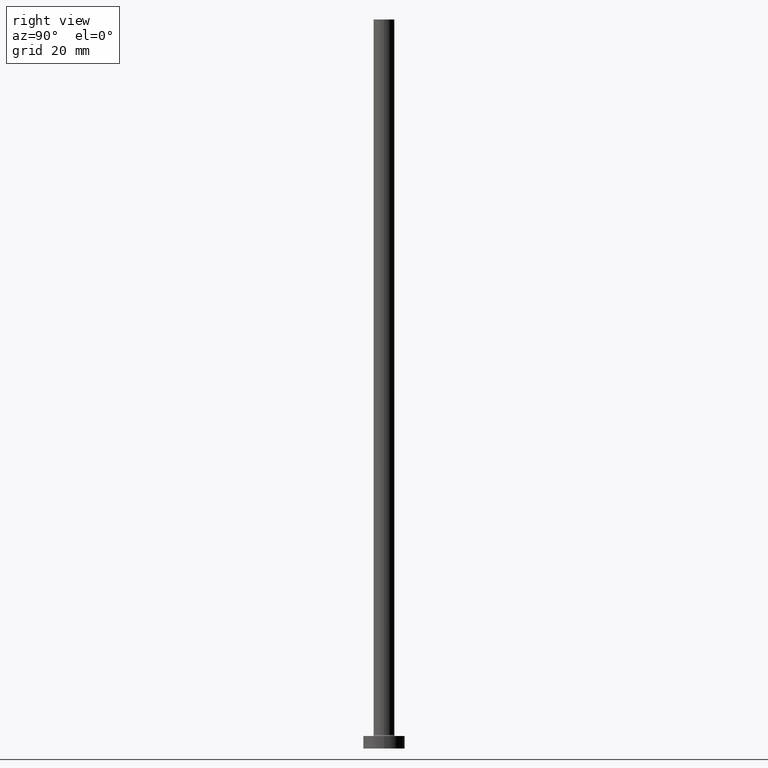
[diagram: clean part render]
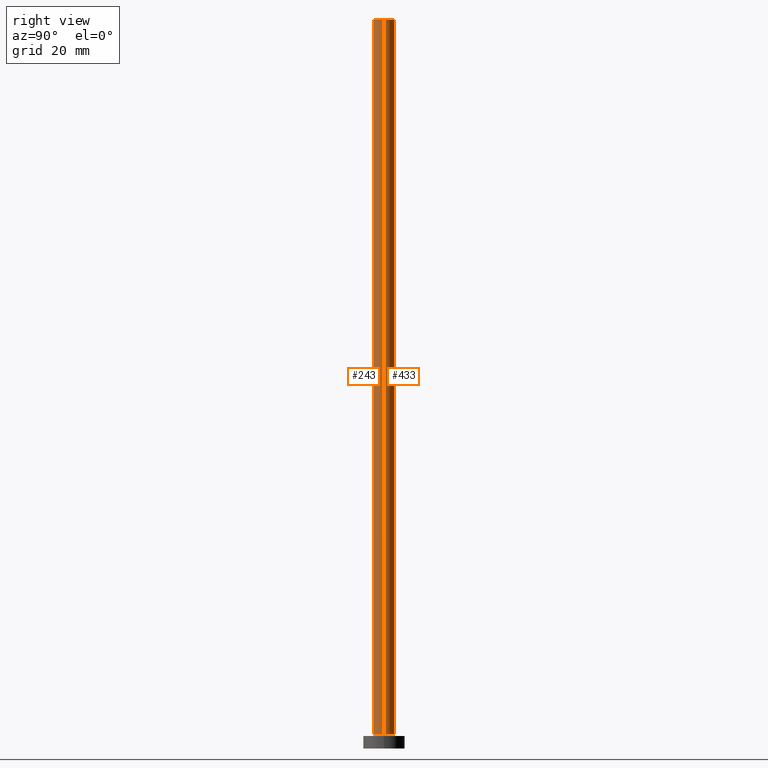
[diagram: same view with one multi-face feature highlighted, each face labeled with its STEP entity id]
A machine part, right view. The highlighted faces form ONE feature: a constant-radius fillet chain: 2 tangent blend faces with common blend radius 2.5 mm. The faces share edges in the B-rep.
Their STEP definitions:
[1] entity #433 (Cylinder):
#12 = DIRECTION ( 'NONE',  ( -0.000000000000000000, -0.000000000000000000, -1.000000000000000000 ) ) ;
#48 = CIRCLE ( 'NONE', #136, 2.500000000000000000 ) ;
#53 = DIRECTION ( 'NONE',  ( -0.000000000000000000, -0.000000000000000000, -1.000000000000000000 ) ) ;
#57 = VECTOR ( 'NONE', #358, 1000.000000000000000 ) ;
#59 = EDGE_CURVE ( 'NONE', #441, #131, #48, .T. ) ;
#67 = LINE ( 'NONE', #220, #57 ) ;
#90 = LINE ( 'NONE', #114, #138 ) ;
#91 = CARTESIAN_POINT ( 'NONE',  ( -2.500000000000000000, 0.000000000000000000, 175.0000000000000000 ) ) ;
#114 = CARTESIAN_POINT ( 'NONE',  ( -2.500000000000000000, 0.000000000000000000, 175.0000000000000000 ) ) ;
#120 = AXIS2_PLACEMENT_3D ( 'NONE', #319, #454, #178 ) ;
#121 = DIRECTION ( 'NONE',  ( 1.000000000000000000, 0.000000000000000000, 0.000000000000000000 ) ) ;
#123 = DIRECTION ( 'NONE',  ( 0.000000000000000000, 0.000000000000000000, 1.000000000000000000 ) ) ;
#131 = VERTEX_POINT ( 'NONE', #384 ) ;
#136 = AXIS2_PLACEMENT_3D ( 'NONE', #331, #123, #121 ) ;
#138 = VECTOR ( 'NONE', #12, 1000.000000000000000 ) ;
#156 = EDGE_CURVE ( 'NONE', #261, #131, #90, .T. ) ;
#164 = ORIENTED_EDGE ( 'NONE', *, *, #296, .T. ) ;
#178 = DIRECTION ( 'NONE',  ( 1.000000000000000000, 0.000000000000000000, 0.000000000000000000 ) ) ;
#218 = CARTESIAN_POINT ( 'NONE',  ( 2.500000000000000000, 3.061616997868383141E-16, 175.0000000000000000 ) ) ;
#220 = CARTESIAN_POINT ( 'NONE',  ( 2.500000000000000000, 3.061616997868383141E-16, 175.0000000000000000 ) ) ;
#221 = CIRCLE ( 'NONE', #120, 2.500000000000000000 ) ;
#236 = ORIENTED_EDGE ( 'NONE', *, *, #156, .F. ) ;
#261 = VERTEX_POINT ( 'NONE', #91 ) ;
#274 = AXIS2_PLACEMENT_3D ( 'NONE', #381, #53, #361 ) ;
#291 = CARTESIAN_POINT ( 'NONE',  ( 2.500000000000000000, 3.061616997868383141E-16, 3.299999999999997158 ) ) ;
#296 = EDGE_CURVE ( 'NONE', #341, #441, #67, .T. ) ;
#312 = CYLINDRICAL_SURFACE ( 'NONE', #274, 2.500000000000000000 ) ;
#316 = EDGE_LOOP ( 'NONE', ( #323, #164, #387, #236 ) ) ;
#319 = CARTESIAN_POINT ( 'NONE',  ( 0.000000000000000000, 0.000000000000000000, 175.0000000000000000 ) ) ;
#323 = ORIENTED_EDGE ( 'NONE', *, *, #382, .F. ) ;
#331 = CARTESIAN_POINT ( 'NONE',  ( 0.000000000000000000, 0.000000000000000000, 3.299999999999997158 ) ) ;
#341 = VERTEX_POINT ( 'NONE', #218 ) ;
#345 = FACE_OUTER_BOUND ( 'NONE', #316, .T. ) ;
#358 = DIRECTION ( 'NONE',  ( -0.000000000000000000, -0.000000000000000000, -1.000000000000000000 ) ) ;
#361 = DIRECTION ( 'NONE',  ( -1.000000000000000000, 0.000000000000000000, 0.000000000000000000 ) ) ;
#381 = CARTESIAN_POINT ( 'NONE',  ( 0.000000000000000000, 0.000000000000000000, 175.0000000000000000 ) ) ;
#382 = EDGE_CURVE ( 'NONE', #341, #261, #221, .T. ) ;
#384 = CARTESIAN_POINT ( 'NONE',  ( -2.500000000000000000, 0.000000000000000000, 3.299999999999997158 ) ) ;
#387 = ORIENTED_EDGE ( 'NONE', *, *, #59, .T. ) ;
#433 = ADVANCED_FACE ( 'NONE', ( #345 ), #312, .T. ) ;
#441 = VERTEX_POINT ( 'NONE', #291 ) ;
#454 = DIRECTION ( 'NONE',  ( 0.000000000000000000, 0.000000000000000000, 1.000000000000000000 ) ) ;
[2] entity #243 (Cylinder):
#12 = DIRECTION ( 'NONE',  ( -0.000000000000000000, -0.000000000000000000, -1.000000000000000000 ) ) ;
#14 = CYLINDRICAL_SURFACE ( 'NONE', #105, 2.500000000000000000 ) ;
#25 = DIRECTION ( 'NONE',  ( 1.000000000000000000, 0.000000000000000000, 0.000000000000000000 ) ) ;
#29 = CARTESIAN_POINT ( 'NONE',  ( 0.000000000000000000, 0.000000000000000000, 3.299999999999997158 ) ) ;
#57 = VECTOR ( 'NONE', #358, 1000.000000000000000 ) ;
#67 = LINE ( 'NONE', #220, #57 ) ;
#84 = ORIENTED_EDGE ( 'NONE', *, *, #296, .F. ) ;
#90 = LINE ( 'NONE', #114, #138 ) ;
#91 = CARTESIAN_POINT ( 'NONE',  ( -2.500000000000000000, 0.000000000000000000, 175.0000000000000000 ) ) ;
#101 = DIRECTION ( 'NONE',  ( 0.000000000000000000, 0.000000000000000000, 1.000000000000000000 ) ) ;
#105 = AXIS2_PLACEMENT_3D ( 'NONE', #126, #306, #380 ) ;
#114 = CARTESIAN_POINT ( 'NONE',  ( -2.500000000000000000, 0.000000000000000000, 175.0000000000000000 ) ) ;
#126 = CARTESIAN_POINT ( 'NONE',  ( 0.000000000000000000, 0.000000000000000000, 175.0000000000000000 ) ) ;
#131 = VERTEX_POINT ( 'NONE', #384 ) ;
#138 = VECTOR ( 'NONE', #12, 1000.000000000000000 ) ;
#148 = ORIENTED_EDGE ( 'NONE', *, *, #259, .F. ) ;
#156 = EDGE_CURVE ( 'NONE', #261, #131, #90, .T. ) ;
#163 = DIRECTION ( 'NONE',  ( 0.000000000000000000, 0.000000000000000000, 1.000000000000000000 ) ) ;
#165 = CARTESIAN_POINT ( 'NONE',  ( 0.000000000000000000, 0.000000000000000000, 175.0000000000000000 ) ) ;
#187 = AXIS2_PLACEMENT_3D ( 'NONE', #29, #101, #25 ) ;
#218 = CARTESIAN_POINT ( 'NONE',  ( 2.500000000000000000, 3.061616997868383141E-16, 175.0000000000000000 ) ) ;
#220 = CARTESIAN_POINT ( 'NONE',  ( 2.500000000000000000, 3.061616997868383141E-16, 175.0000000000000000 ) ) ;
#243 = ADVANCED_FACE ( 'NONE', ( #302 ), #14, .T. ) ;
#255 = CIRCLE ( 'NONE', #187, 2.500000000000000000 ) ;
#259 = EDGE_CURVE ( 'NONE', #261, #341, #282, .T. ) ;
#260 = AXIS2_PLACEMENT_3D ( 'NONE', #165, #163, #268 ) ;
#261 = VERTEX_POINT ( 'NONE', #91 ) ;
#268 = DIRECTION ( 'NONE',  ( 1.000000000000000000, 0.000000000000000000, 0.000000000000000000 ) ) ;
#282 = CIRCLE ( 'NONE', #260, 2.500000000000000000 ) ;
#291 = CARTESIAN_POINT ( 'NONE',  ( 2.500000000000000000, 3.061616997868383141E-16, 3.299999999999997158 ) ) ;
#296 = EDGE_CURVE ( 'NONE', #341, #441, #67, .T. ) ;
#302 = FACE_OUTER_BOUND ( 'NONE', #407, .T. ) ;
#306 = DIRECTION ( 'NONE',  ( -0.000000000000000000, -0.000000000000000000, -1.000000000000000000 ) ) ;
#341 = VERTEX_POINT ( 'NONE', #218 ) ;
#346 = ORIENTED_EDGE ( 'NONE', *, *, #156, .T. ) ;
#358 = DIRECTION ( 'NONE',  ( -0.000000000000000000, -0.000000000000000000, -1.000000000000000000 ) ) ;
#377 = ORIENTED_EDGE ( 'NONE', *, *, #415, .T. ) ;
#380 = DIRECTION ( 'NONE',  ( -1.000000000000000000, 0.000000000000000000, 0.000000000000000000 ) ) ;
#384 = CARTESIAN_POINT ( 'NONE',  ( -2.500000000000000000, 0.000000000000000000, 3.299999999999997158 ) ) ;
#407 = EDGE_LOOP ( 'NONE', ( #84, #148, #346, #377 ) ) ;
#415 = EDGE_CURVE ( 'NONE', #131, #441, #255, .T. ) ;
#441 = VERTEX_POINT ( 'NONE', #291 ) ;